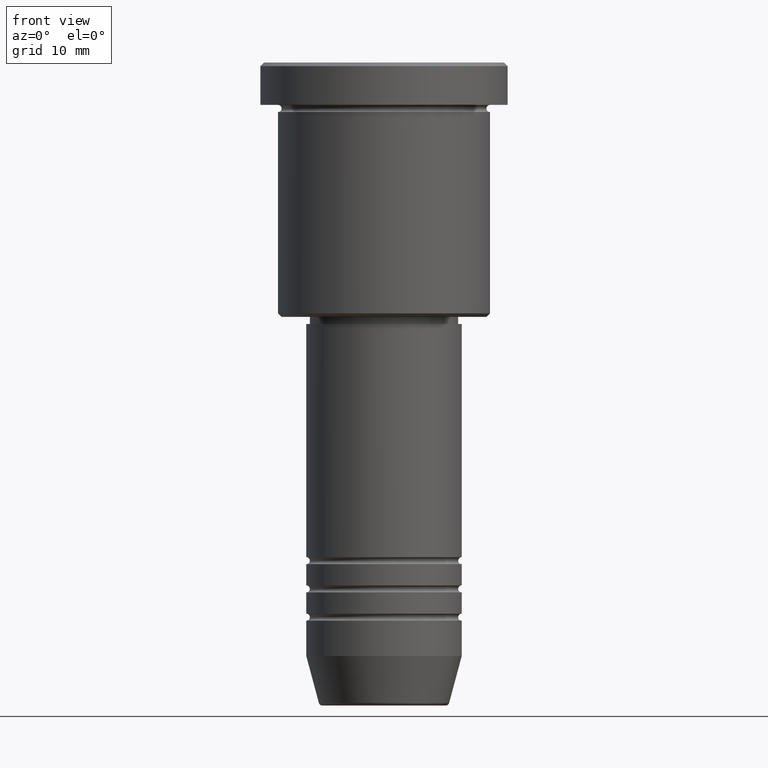
[diagram: clean part render]
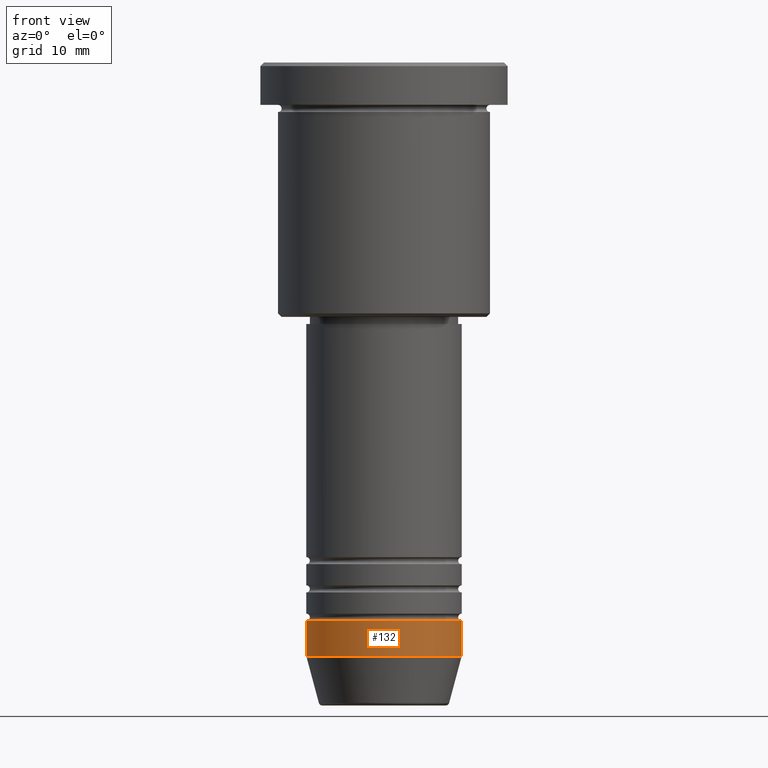
[diagram: same view with one face highlighted and labeled with its STEP entity id]
A machine part, front view. The second image highlights one B-rep face of the part: STEP entity #132.
In plain terms, the highlighted cylindrical surface (partial cylindrical patch) has radius 11 mm, axis along (-0, -0, 1).
Its self-contained STEP definition (entity closure, byte-faithful):
#14 = DIRECTION ( 'NONE',  ( -0.000000000000000000, -0.000000000000000000, 1.000000000000000000 ) ) ;
#28 = CARTESIAN_POINT ( 'NONE',  ( -11.00000000000000000, 1.347111479062088405E-15, -78.99999999999998579 ) ) ;
#43 = VECTOR ( 'NONE', #781, 1000.000000000000000 ) ;
#67 = VERTEX_POINT ( 'NONE', #1067 ) ;
#80 = ORIENTED_EDGE ( 'NONE', *, *, #919, .F. ) ;
#84 = VERTEX_POINT ( 'NONE', #620 ) ;
#132 = ADVANCED_FACE ( 'NONE', ( #277 ), #197, .T. ) ;
#158 = CARTESIAN_POINT ( 'NONE',  ( -11.00000000000000000, 1.347111479062088405E-15, 0.000000000000000000 ) ) ;
#175 = DIRECTION ( 'NONE',  ( 1.000000000000000000, 0.000000000000000000, 0.000000000000000000 ) ) ;
#197 = CYLINDRICAL_SURFACE ( 'NONE', #357, 11.00000000000000000 ) ;
#246 = LINE ( 'NONE', #158, #43 ) ;
#277 = FACE_OUTER_BOUND ( 'NONE', #361, .T. ) ;
#304 = CARTESIAN_POINT ( 'NONE',  ( 11.00000000000000000, 0.000000000000000000, 0.000000000000000000 ) ) ;
#342 = CARTESIAN_POINT ( 'NONE',  ( 0.000000000000000000, 0.000000000000000000, -78.99999999999998579 ) ) ;
#357 = AXIS2_PLACEMENT_3D ( 'NONE', #465, #1021, #175 ) ;
#361 = EDGE_LOOP ( 'NONE', ( #911, #679, #1050, #80 ) ) ;
#363 = EDGE_CURVE ( 'NONE', #67, #886, #784, .T. ) ;
#364 = DIRECTION ( 'NONE',  ( -0.000000000000000000, -0.000000000000000000, 1.000000000000000000 ) ) ;
#383 = VECTOR ( 'NONE', #912, 1000.000000000000000 ) ;
#465 = CARTESIAN_POINT ( 'NONE',  ( 0.000000000000000000, 0.000000000000000000, 0.000000000000000000 ) ) ;
#546 = DIRECTION ( 'NONE',  ( 1.000000000000000000, 0.000000000000000000, 0.000000000000000000 ) ) ;
#580 = LINE ( 'NONE', #304, #383 ) ;
#620 = CARTESIAN_POINT ( 'NONE',  ( 11.00000000000000000, 0.000000000000000000, -78.99999999999998579 ) ) ;
#649 = AXIS2_PLACEMENT_3D ( 'NONE', #735, #364, #546 ) ;
#671 = AXIS2_PLACEMENT_3D ( 'NONE', #342, #14, #1027 ) ;
#679 = ORIENTED_EDGE ( 'NONE', *, *, #363, .T. ) ;
#715 = EDGE_CURVE ( 'NONE', #67, #1016, #246, .T. ) ;
#735 = CARTESIAN_POINT ( 'NONE',  ( 0.000000000000000000, 0.000000000000000000, -83.99999999999998579 ) ) ;
#781 = DIRECTION ( 'NONE',  ( -0.000000000000000000, -0.000000000000000000, 1.000000000000000000 ) ) ;
#784 = CIRCLE ( 'NONE', #649, 11.00000000000000000 ) ;
#886 = VERTEX_POINT ( 'NONE', #892 ) ;
#892 = CARTESIAN_POINT ( 'NONE',  ( 11.00000000000000000, 0.000000000000000000, -83.99999999999998579 ) ) ;
#911 = ORIENTED_EDGE ( 'NONE', *, *, #715, .F. ) ;
#912 = DIRECTION ( 'NONE',  ( -0.000000000000000000, -0.000000000000000000, 1.000000000000000000 ) ) ;
#919 = EDGE_CURVE ( 'NONE', #1016, #84, #994, .T. ) ;
#987 = EDGE_CURVE ( 'NONE', #886, #84, #580, .T. ) ;
#994 = CIRCLE ( 'NONE', #671, 11.00000000000000000 ) ;
#1016 = VERTEX_POINT ( 'NONE', #28 ) ;
#1021 = DIRECTION ( 'NONE',  ( -0.000000000000000000, -0.000000000000000000, 1.000000000000000000 ) ) ;
#1027 = DIRECTION ( 'NONE',  ( 1.000000000000000000, 0.000000000000000000, 0.000000000000000000 ) ) ;
#1050 = ORIENTED_EDGE ( 'NONE', *, *, #987, .T. ) ;
#1067 = CARTESIAN_POINT ( 'NONE',  ( -11.00000000000000000, 1.347111479062088405E-15, -83.99999999999998579 ) ) ;